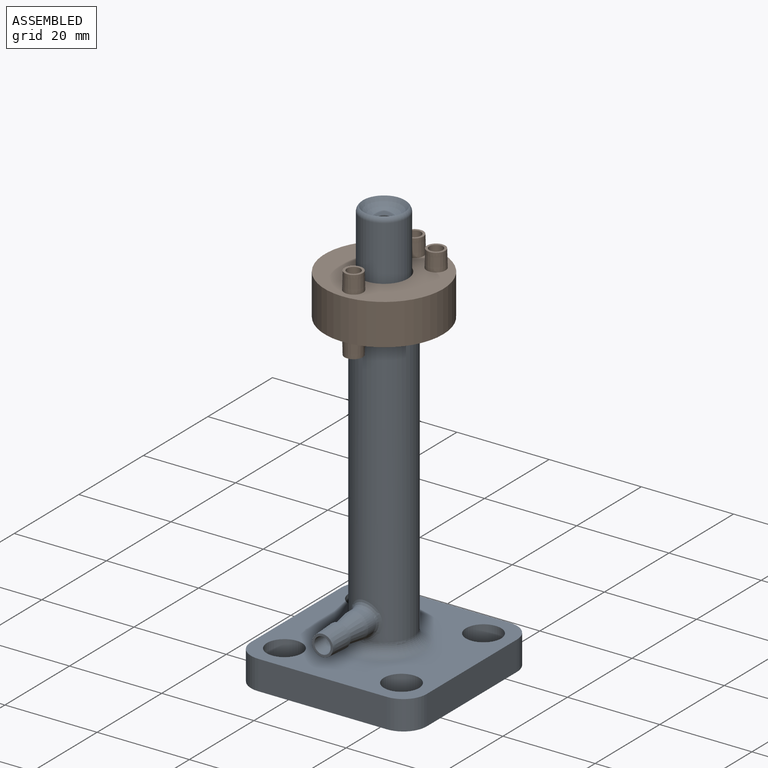
[diagram: assembled view]
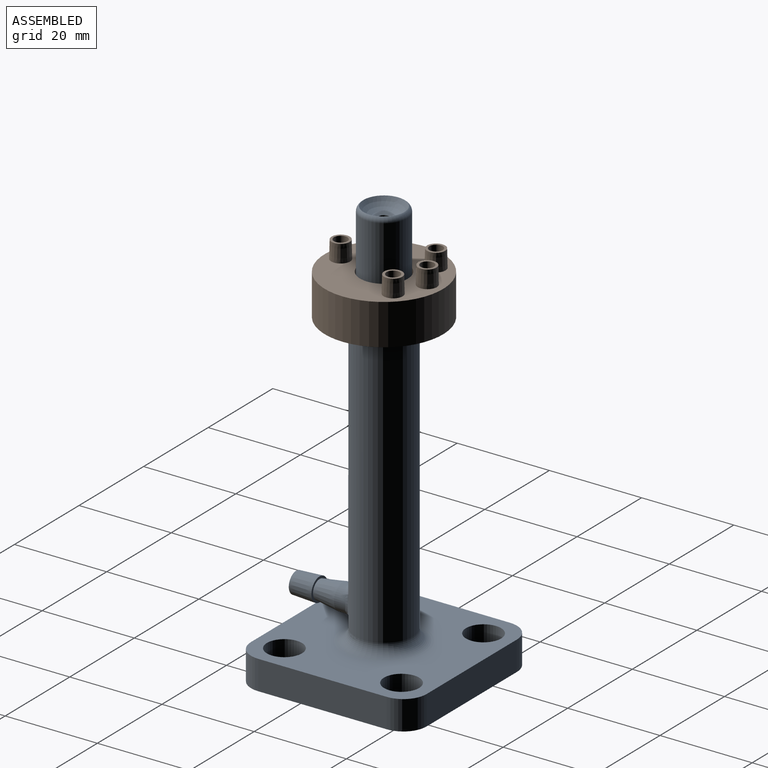
[diagram: assembled view, second angle]
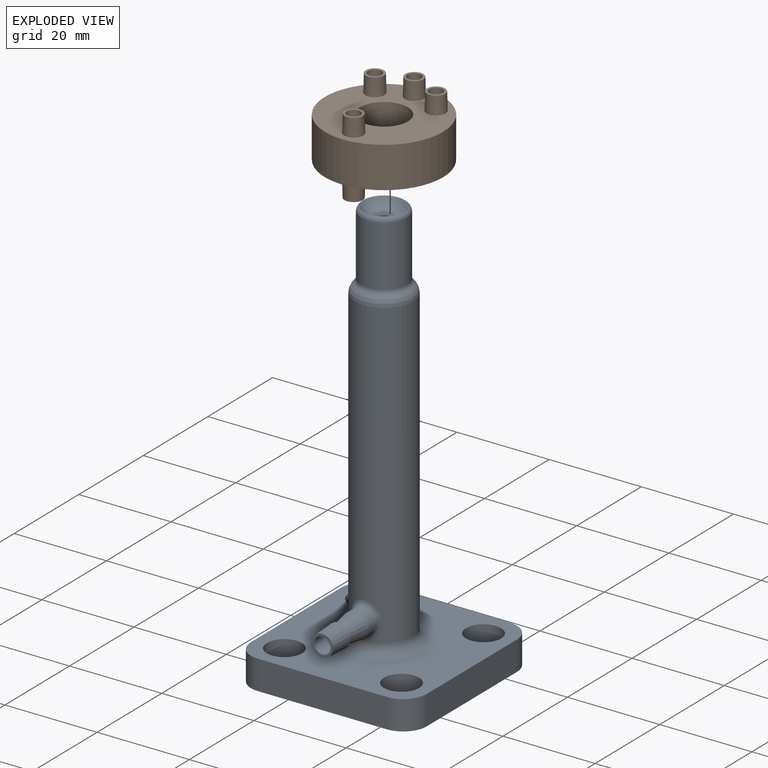
[diagram: exploded view]
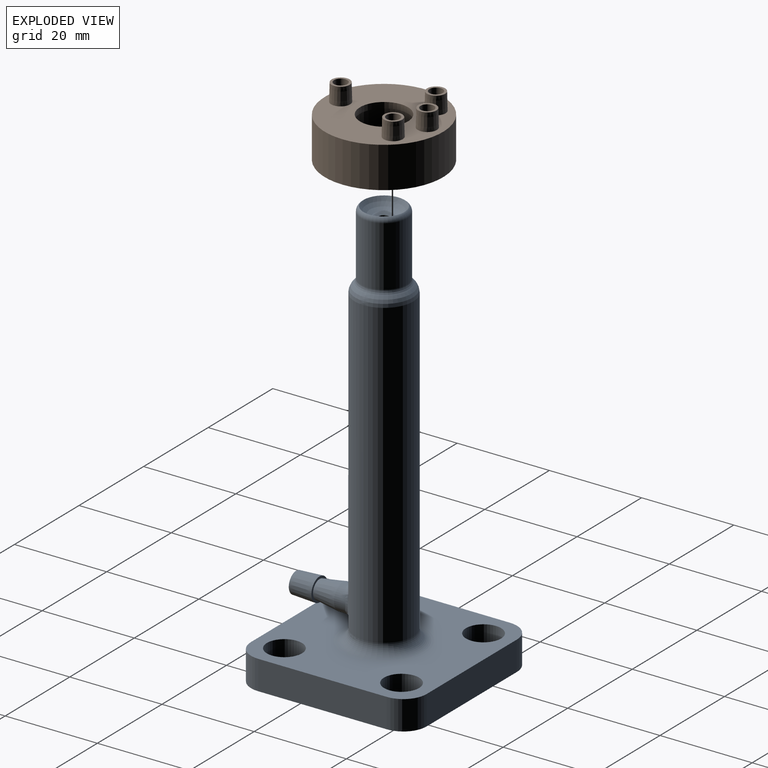
[diagram: exploded view, second angle]
ASSEMBLY  parts=2 mates=2
PART A: 41 faces, bbox 38.1x38.1x91.8 mm
  f0: sphere r=5.15mm, area 77.3mm2, adj f30,f40
  f1: plane 27.94x6.35mm, normal (-1,0,0), area 177.4mm2, adj f9,f10,f11,f14
  f2: plane 27.94x6.35mm, normal (0,-1,0), area 177.4mm2, adj f9,f10,f11,f12
  f3: plane 27.94x6.35mm, normal (1,0,0), area 177.4mm2, adj f9,f10,f12,f13
  f4: cylinder r=3.81mm len=7.62mm, axis (0,0,-1), area 152mm2, adj f9,f10
  f5: cylinder r=3.81mm len=7.62mm, axis (0,0,-1), area 152mm2, adj f9,f10
  f6: cylinder r=3.81mm len=7.62mm, axis (0,0,-1), area 152mm2, adj f9,f10
  f7: plane 27.94x6.35mm, normal (0,1,0), area 177.4mm2, adj f9,f10,f13,f14
  f8: cylinder r=3.81mm len=7.62mm, axis (0,0,-1), area 152mm2, adj f9,f10
  f9: plane 38.1x38.1mm, normal (0,0,1), area 998.8mm2, adj f1,f2,f3,f4,f5,f6,f7,f8
  f10: plane 38.1x38.1mm, normal (0,0,-1), area 1247mm2, adj f1,f2,f3,f4,f5,f6,f7,f8
  f11: cylinder r=5.08mm len=6.35mm, axis (0,0,1), area 50.7mm2, adj f1,f2,f9,f10
  f12: cylinder r=5.08mm len=6.35mm, axis (0,0,-1), area 50.7mm2, adj f2,f3,f9,f10
  f13: cylinder r=5.08mm len=6.35mm, axis (0,0,1), area 50.7mm2, adj f3,f7,f9,f10
  f14: cylinder r=5.08mm len=6.35mm, axis (0,0,-1), area 50.7mm2, adj f1,f7,f9,f10
  f15: cylinder r=6.35mm len=65.67mm, axis (0,0,-1), area 2575.6mm2, adj f21,f23,f33
  f16: cylinder r=5mm len=13.06mm, axis (0,0,-1), area 410.2mm2, adj f32,f40
  f17: cylinder r=2.79mm len=5.59mm, axis (0,-1,0), area 32.4mm2, adj f22,f23,f24,f25,f38
  f18: cylinder r=2.29mm len=33.02mm, axis (0,0,-1), area 474.3mm2, adj f19,f26
  f19: torus R=5.08mm, axis (-1,0,0), area 114.6mm2, adj f18,f20
  f20: cylinder r=2.29mm len=4.57mm, axis (0,-1,0), area 36.5mm2, adj f19,f34
  f21: torus R=8.89mm, axis (0,0,1), area 181.6mm2, adj f9,f15,f22,f24,f25
  f22: bspline ~1.78x1.54mm, area 1.4mm2, adj f17,f21,f23,f24
  f23: bspline ~7.87x6.77mm, area 28.7mm2, adj f15,f17,f22,f25
  f24: bspline ~1.55x1.25mm, area 1.6mm2, adj f17,f21,f22,f25
  f25: bspline ~1.78x1.55mm, area 1.4mm2, adj f17,f21,f23,f24
  f26: cone r=2.29mm half-angle=15.4deg, axis (0,0,-1), area 32.1mm2, adj f18,f27
  f27: cylinder r=1.59mm len=16.51mm, axis (0,0,1), area 164.7mm2, adj f26,f28
  f28: cone r=1.59mm half-angle=11.3deg, axis (0,0,-1), area 25.8mm2, adj f27,f29
  f29: cylinder r=0.95mm len=9.53mm, axis (0,0,1), area 57mm2, adj f28,f31
  f30: cylinder r=1.27mm len=5.37mm, axis (0,0,1), area 42.8mm2, adj f0,f31
  f31: cone r=0.95mm half-angle=14deg, axis (0,0,1), area 9.1mm2, adj f29,f30
  f32: torus R=6.27mm, axis (0,0,1), area 35.7mm2, adj f16,f33
  f33: torus R=3.81mm, axis (0,0,1), area 83.8mm2, adj f15,f32
  f34: plane 4.57x4.57mm, normal (0,1,0), area 6.5mm2, adj f20,f39
  f35: plane 5.08x5.08mm, normal (0,1,0), area 7.3mm2, adj f37,f38
  f36: plane 4.57x4.57mm, normal (0,-1,0), area 6.5mm2, adj f37,f39
  f37: cone r=2.54mm half-angle=2.9deg, axis (0,1,0), area 77.1mm2, adj f35,f36
  f38: cone r=2.03mm half-angle=8.5deg, axis (0,1,0), area 77.9mm2, adj f17,f35
  f39: cylinder r=1.78mm len=11.43mm, axis (0,-1,0), area 127.7mm2, adj f34,f36
  f40: torus R=3.73mm, axis (0,0,1), area 37.3mm2, adj f0,f16
PART B: 26 faces, bbox 25.7x25.7x16.5 mm
  f0: cylinder r=6.48mm len=12.95mm, axis (0,0,1), area 310.1mm2, adj f2,f3
  f1: cylinder r=12.83mm len=25.65mm, axis (0,0,1), area 716.5mm2, adj f2,f5
  f2: plane 25.65x25.65mm, normal (0,0,-1), area 371.6mm2, adj f0,f1,f18
  f3: plane 12.95x12.95mm, normal (0,0,-1), area 46.6mm2, adj f0,f4
  f4: cylinder r=5.21mm len=10.41mm, axis (0,0,-1), area 41.6mm2, adj f3,f5
  f5: plane 25.65x25.65mm, normal (0,0,1), area 378.3mm2, adj f1,f4,f7,f9,f11,f13
  f6: plane 3.94x3.94mm, normal (0,0,1), area 5.5mm2, adj f7,f17
  f7: cone r=2.18mm half-angle=1.4deg, axis (0,0,-1), area 48.2mm2, adj f5,f6
  f8: plane 3.94x3.94mm, normal (0,0,1), area 5.5mm2, adj f9,f16
  f9: cone r=2.18mm half-angle=1.4deg, axis (0,0,-1), area 48.2mm2, adj f5,f8
  f10: plane 3.94x3.94mm, normal (0,0,1), area 5.5mm2, adj f11,f15
  f11: cone r=2.18mm half-angle=1.4deg, axis (0,0,-1), area 48.2mm2, adj f5,f10
  f12: plane 3.94x3.94mm, normal (0,0,1), area 5.5mm2, adj f13,f14
  f13: cone r=1.97mm half-angle=1.4deg, axis (0,0,-1), area 48.2mm2, adj f5,f12
  f14: cylinder r=1.46mm len=16.51mm, axis (0,0,1), area 151.5mm2, adj f12,f19
  f15: cylinder r=1.46mm len=6.99mm, axis (0,0,1), area 64.1mm2, adj f10,f20
  f16: cylinder r=1.46mm len=6.99mm, axis (0,0,1), area 64.1mm2, adj f8,f20
  f17: cylinder r=1.46mm len=6.99mm, axis (0,0,1), area 64.1mm2, adj f6,f20
  f18: cone r=1.97mm half-angle=1.6deg, axis (0,0,1), area 48.4mm2, adj f2,f19
  f19: plane 3.94x3.94mm, normal (0,0,-1), area 5.5mm2, adj f14,f18
  f20: plane 17.66x7.25mm, normal (0,0,-1), area 61.9mm2, adj f15,f16,f17,f21,f22,f23,f24
  f21: cylinder r=7.54mm len=10.2mm, axis (0,0,1), area 42.7mm2, adj f20,f22,f24,f25
  f22: cylinder r=2.18mm len=3.81mm, axis (0,0,1), area 26.1mm2, adj f20,f21,f23,f25
  f23: cylinder r=11.29mm len=16.38mm, axis (0,0,1), area 69.8mm2, adj f20,f22,f24,f25
  f24: cylinder r=2.18mm len=3.81mm, axis (0,0,1), area 26.1mm2, adj f20,f21,f23,f25
  f25: plane 17.66x7.25mm, normal (0,0,1), area 82mm2, adj f21,f22,f23,f24
PLACE A t=(-10.54,-73.21,-64.46)mm
PLACE B t=(-10.54,-73.21,13.01)mm
MATE cylindrical B.f0 <-> A.f15  axis (0,0,1) through (-10.54,-73.21,5.39)mm
MATE planar B.f0 <-> A.f15  axis (0,0,-1) through (-10.54,-73.21,13.01)mm
